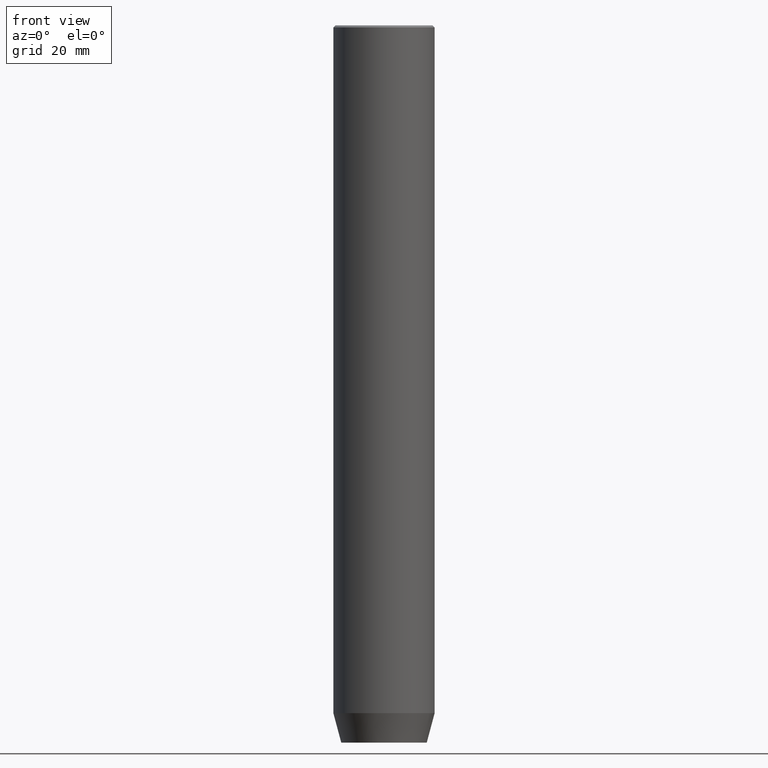
[diagram: clean part render]
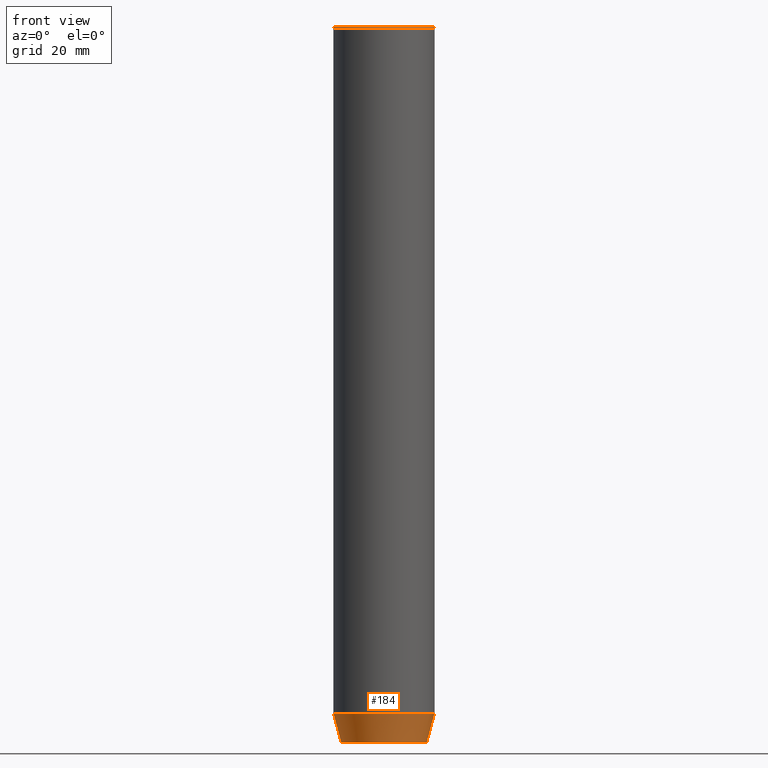
[diagram: same view with one face highlighted and labeled with its STEP entity id]
A machine part, front view. The second image highlights one B-rep face of the part: STEP entity #184.
In plain terms, the highlighted conical surface has half-angle 15 deg.
Its self-contained STEP definition (entity closure, byte-faithful):
#15 = CARTESIAN_POINT ( 'NONE',  ( 12.00000000000000000, 0.000000000000000000, -162.9999999999999716 ) ) ;
#48 = VECTOR ( 'NONE', #347, 1000.000000000000114 ) ;
#55 = CARTESIAN_POINT ( 'NONE',  ( -12.00000000000000000, 1.469576158976823947E-15, -162.9999999999999716 ) ) ;
#65 = DIRECTION ( 'NONE',  ( 1.000000000000000000, 0.000000000000000000, 0.000000000000000000 ) ) ;
#66 = VERTEX_POINT ( 'NONE', #55 ) ;
#70 = VECTOR ( 'NONE', #529, 1000.000000000000114 ) ;
#87 = AXIS2_PLACEMENT_3D ( 'NONE', #429, #583, #346 ) ;
#93 = LINE ( 'NONE', #99, #48 ) ;
#99 = CARTESIAN_POINT ( 'NONE',  ( 12.00000000000000000, 0.000000000000000000, -162.9999999999999716 ) ) ;
#108 = CARTESIAN_POINT ( 'NONE',  ( 0.000000000000000000, 0.000000000000000000, -162.9999999999999716 ) ) ;
#131 = EDGE_CURVE ( 'NONE', #304, #350, #170, .T. ) ;
#137 = EDGE_CURVE ( 'NONE', #304, #66, #380, .T. ) ;
#146 = EDGE_LOOP ( 'NONE', ( #160, #335, #432, #563 ) ) ;
#155 = CARTESIAN_POINT ( 'NONE',  ( -10.12435565298212836, 1.354726066681110655E-15, -170.0000000000000000 ) ) ;
#160 = ORIENTED_EDGE ( 'NONE', *, *, #137, .F. ) ;
#170 = CIRCLE ( 'NONE', #269, 10.12435565298212836 ) ;
#184 = ADVANCED_FACE ( 'NONE', ( #572 ), #285, .T. ) ;
#226 = CARTESIAN_POINT ( 'NONE',  ( 10.12435565298212836, 0.000000000000000000, -170.0000000000000000 ) ) ;
#269 = AXIS2_PLACEMENT_3D ( 'NONE', #445, #301, #372 ) ;
#285 = CONICAL_SURFACE ( 'NONE', #87, 12.00000000000000000, 0.2617993877991499629 ) ;
#292 = DIRECTION ( 'NONE',  ( -0.000000000000000000, -0.000000000000000000, 1.000000000000000000 ) ) ;
#301 = DIRECTION ( 'NONE',  ( -0.000000000000000000, -0.000000000000000000, 1.000000000000000000 ) ) ;
#304 = VERTEX_POINT ( 'NONE', #155 ) ;
#335 = ORIENTED_EDGE ( 'NONE', *, *, #131, .T. ) ;
#341 = CIRCLE ( 'NONE', #576, 12.00000000000000000 ) ;
#345 = EDGE_CURVE ( 'NONE', #350, #495, #93, .T. ) ;
#346 = DIRECTION ( 'NONE',  ( 1.000000000000000000, 0.000000000000000000, 0.000000000000000000 ) ) ;
#347 = DIRECTION ( 'NONE',  ( 0.2588190451025212391, 0.000000000000000000, 0.9659258262890680902 ) ) ;
#350 = VERTEX_POINT ( 'NONE', #226 ) ;
#372 = DIRECTION ( 'NONE',  ( 1.000000000000000000, 0.000000000000000000, 0.000000000000000000 ) ) ;
#380 = LINE ( 'NONE', #562, #70 ) ;
#429 = CARTESIAN_POINT ( 'NONE',  ( 0.000000000000000000, 0.000000000000000000, -162.9999999999999716 ) ) ;
#432 = ORIENTED_EDGE ( 'NONE', *, *, #345, .T. ) ;
#445 = CARTESIAN_POINT ( 'NONE',  ( 0.000000000000000000, 0.000000000000000000, -170.0000000000000000 ) ) ;
#495 = VERTEX_POINT ( 'NONE', #15 ) ;
#529 = DIRECTION ( 'NONE',  ( -0.2588190451025212391, 3.169619151431771721E-17, 0.9659258262890680902 ) ) ;
#562 = CARTESIAN_POINT ( 'NONE',  ( -12.00000000000000000, 1.469576158976823947E-15, -162.9999999999999716 ) ) ;
#563 = ORIENTED_EDGE ( 'NONE', *, *, #571, .F. ) ;
#571 = EDGE_CURVE ( 'NONE', #66, #495, #341, .T. ) ;
#572 = FACE_OUTER_BOUND ( 'NONE', #146, .T. ) ;
#576 = AXIS2_PLACEMENT_3D ( 'NONE', #108, #292, #65 ) ;
#583 = DIRECTION ( 'NONE',  ( -0.000000000000000000, -0.000000000000000000, 1.000000000000000000 ) ) ;